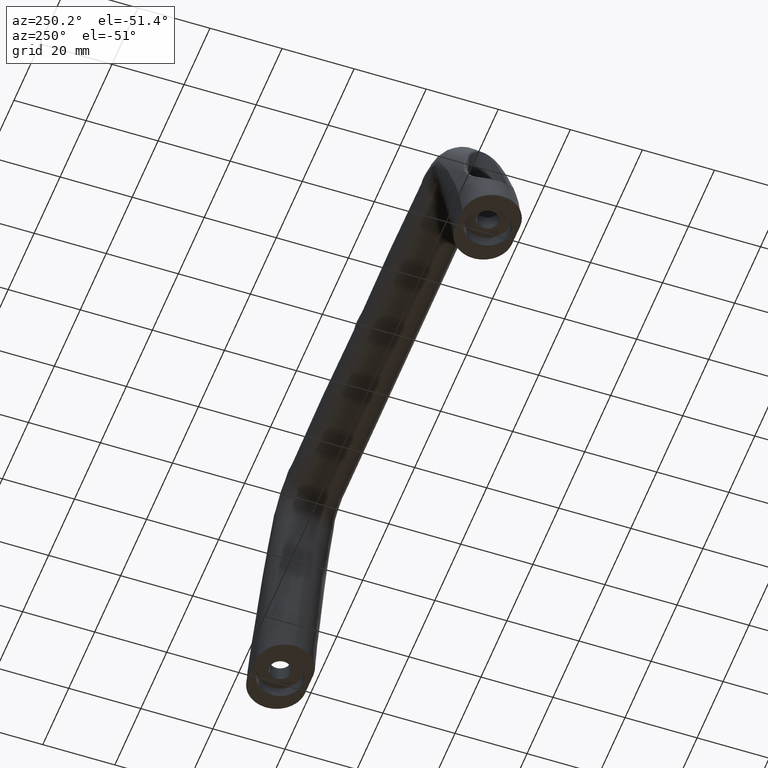
[diagram: clean part render]
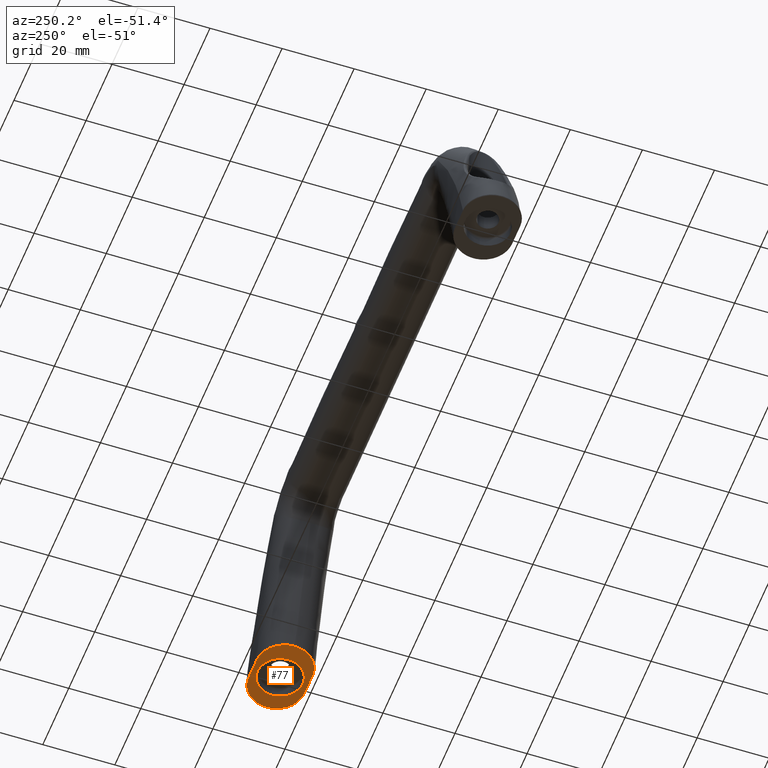
[diagram: same view with one face highlighted and labeled with its STEP entity id]
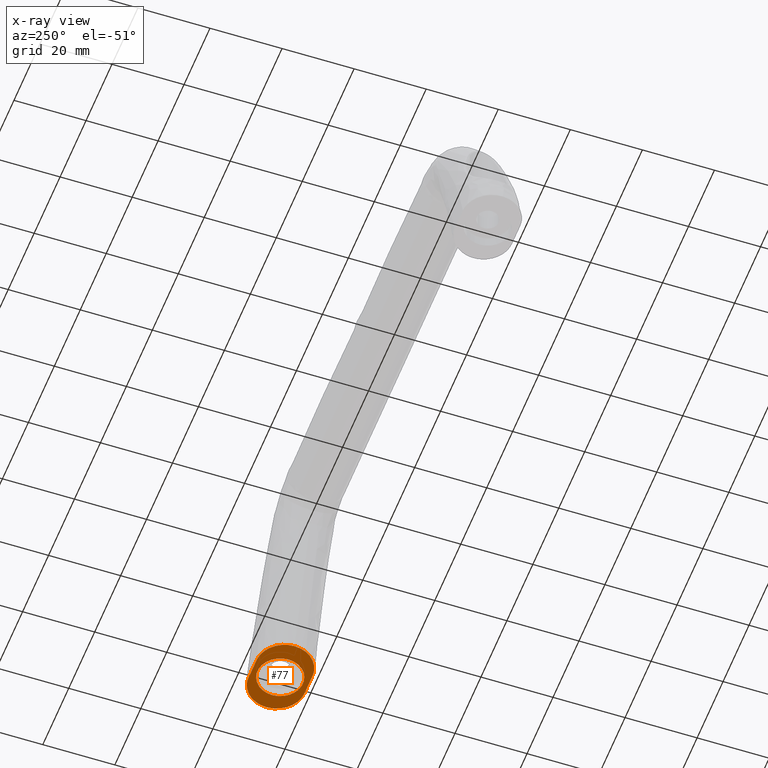
[diagram: x-ray of the same camera — body ghosted, the highlighted face saturated]
A machine part, auxiliary view. The second image highlights one B-rep face of the part: STEP entity #77.
The next image is the same camera in x-ray: the body ghosted, the highlighted face saturated — about 0% of this face is hidden behind the body in this view.
In plain terms, the highlighted planar face has unit normal (0, 0, -1).
Its self-contained STEP definition (entity closure, byte-faithful):
#77=ADVANCED_FACE('',(#468,#469),#467,.T.);
#467=PLANE('',#3920);
#468=FACE_OUTER_BOUND('',#3921,.T.);
#469=FACE_BOUND('',#3922,.T.);
#3917=CARTESIAN_POINT('',(-1.32201761493E+01,3.78022730889E+01,2.14999999850E+01));
#3918=DIRECTION('',(0.00000000000E+00,0.00000000000E+00,-1.00000000000E+00));
#3919=DIRECTION('',(1.00000000000E+00,0.00000000000E+00,0.00000000000E+00));
#3920=AXIS2_PLACEMENT_3D('',#3917,#3918,#3919);
#3921=EDGE_LOOP('',(#4248,#4249,#4250));
#3922=EDGE_LOOP('',(#4251,#4252));
#4248=ORIENTED_EDGE('',*,*,#4318,.F.);
#4249=ORIENTED_EDGE('',*,*,#4403,.F.);
#4250=ORIENTED_EDGE('',*,*,#4404,.F.);
#4251=ORIENTED_EDGE('',*,*,#4408,.T.);
#4252=ORIENTED_EDGE('',*,*,#4409,.T.);
#4318=EDGE_CURVE('',#4437,#4444,#4445,.T.);
#4403=EDGE_CURVE('',#5002,#4437,#5009,.T.);
#4404=EDGE_CURVE('',#4444,#5002,#5015,.T.);
#4408=EDGE_CURVE('',#5039,#5040,#5041,.T.);
#4409=EDGE_CURVE('',#5040,#5039,#5047,.T.);
#4437=VERTEX_POINT('',#5224);
#4444=VERTEX_POINT('',#5229);
#4445=(BOUNDED_CURVE() B_SPLINE_CURVE(3,(#5230,#5231,#5232,#5233,#5234,#5235,#5236,#5237,#5238,#5239,#5240,#5241,#5242,#5243,#5244,#5245,#5246,#5247,#5248,#5249,#5250,#5251,#5252,#5253,#5254,#5255,#5256,#5257,#5258,#5259,#5260,#5261,#5262,#5263,#5264,#5265,#5266,#5267,#5268,#5269,#5270,#5271),.UNSPECIFIED.,.F.,.F.) B_SPLINE_CURVE_WITH_KNOTS((4,2,2,2,2,2,2,2,2,2,2,2,2,2,2,2,2,2,2,2,4),(-2.43763442707E+01,-2.28528227538E+01,-2.13293012368E+01,-2.05675404783E+01,-1.98057797199E+01,-1.82822582030E+01,-1.67587366860E+01,-1.59969759276E+01,-1.52352151691E+01,-1.37116936522E+01,-1.21881721353E+01,-1.06646506184E+01,-9.14112910149E+00,-8.37936834303E+00,-7.61760758457E+00,-6.09408606766E+00,-4.57056455074E+00,-3.04704303383E+00,-2.28528227538E+00,-1.52352151691E+00,0.00000000000E+00),.UNSPECIFIED.) CURVE() GEOMETRIC_REPRESENTATION_ITEM() RATIONAL_B_SPLINE_CURVE((1.00000000000E+00,1.00000000000E+00,1.00000000000E+00,1.00000000000E+00,1.00000000000E+00,1.00000000000E+00,1.00000000000E+00,1.00000000000E+00,1.00000000000E+00,1.00000000000E+00,1.00000000000E+00,1.00000000000E+00,1.00000000000E+00,1.00000000000E+00,1.00000000000E+00,1.00000000000E+00,1.00000000000E+00,1.00000000000E+00,1.00000000000E+00,1.00000000000E+00,1.00000000000E+00,1.00000000000E+00,1.00000000000E+00,1.00000000000E+00,1.00000000000E+00,1.00000000000E+00,1.00000000000E+00,1.00000000000E+00,1.00000000000E+00,1.00000000000E+00,1.00000000000E+00,1.00000000000E+00,1.00000000000E+00,1.00000000000E+00,1.00000000000E+00,1.00000000000E+00,1.00000000000E+00,1.00000000000E+00,1.00000000000E+00,1.00000000000E+00,1.00000000000E+00,1.00000000000E+00)) REPRESENTATION_ITEM('') );
#5002=VERTEX_POINT('',#6469);
#5009=(BOUNDED_CURVE() B_SPLINE_CURVE(3,(#6474,#6475,#6476,#6477,#6478,#6479,#6480,#6481,#6482,#6483,#6484,#6485,#6486,#6487,#6488,#6489,#6490,#6491,#6492,#6493,#6494,#6495,#6496),.UNSPECIFIED.,.F.,.F.) B_SPLINE_CURVE_WITH_KNOTS((4,2,2,2,2,2,2,2,2,2,1,4),(-1.83551127262E+01,-1.72079181809E+01,-1.60607236355E+01,-1.49135290900E+01,-1.37663345447E+01,-1.26191399993E+01,-1.14719454540E+01,-9.17755636312E+00,-6.88316727234E+00,-5.73597272696E+00,-4.58877818156E+00,0.00000000000E+00),.UNSPECIFIED.) CURVE() GEOMETRIC_REPRESENTATION_ITEM() RATIONAL_B_SPLINE_CURVE((1.00000000000E+00,1.00000000000E+00,1.00000000000E+00,1.00000000000E+00,1.00000000000E+00,1.00000000000E+00,1.00000000000E+00,1.00000000000E+00,1.00000000000E+00,1.00000000000E+00,1.00000000000E+00,1.00000000000E+00,1.00000000000E+00,1.00000000000E+00,1.00000000000E+00,1.00000000000E+00,1.00000000000E+00,1.00000000000E+00,1.00000000000E+00,1.00000000000E+00,1.00000000000E+00,1.00000000000E+00,1.00000000000E+00)) REPRESENTATION_ITEM('') );
#5015=(BOUNDED_CURVE() B_SPLINE_CURVE(3,(#6497,#6498,#6499,#6500,#6501,#6502,#6503,#6504,#6505,#6506,#6507,#6508,#6509,#6510,#6511,#6512,#6513,#6514,#6515,#6516,#6517,#6518,#6519,#6520,#6521,#6522,#6523),.UNSPECIFIED.,.F.,.F.) B_SPLINE_CURVE_WITH_KNOTS((4,1,2,2,2,2,2,2,2,2,2,2,2,4),(-1.83537318074E+01,-1.37652988555E+01,-1.26181906175E+01,-1.20446364985E+01,-1.14710823796E+01,-1.03239741417E+01,-9.75042002264E+00,-9.17686590367E+00,-8.02975766571E+00,-6.88264942775E+00,-5.73554118979E+00,-4.58843295183E+00,-2.29421647592E+00,0.00000000000E+00),.UNSPECIFIED.) CURVE() GEOMETRIC_REPRESENTATION_ITEM() RATIONAL_B_SPLINE_CURVE((1.00000000000E+00,1.00000000000E+00,1.00000000000E+00,1.00000000000E+00,1.00000000000E+00,1.00000000000E+00,1.00000000000E+00,1.00000000000E+00,1.00000000000E+00,1.00000000000E+00,1.00000000000E+00,1.00000000000E+00,1.00000000000E+00,1.00000000000E+00,1.00000000000E+00,1.00000000000E+00,1.00000000000E+00,1.00000000000E+00,1.00000000000E+00,1.00000000000E+00,1.00000000000E+00,1.00000000000E+00,1.00000000000E+00,1.00000000000E+00,1.00000000000E+00,1.00000000000E+00,1.00000000000E+00)) REPRESENTATION_ITEM('') );
#5039=VERTEX_POINT('',#6575);
#5040=VERTEX_POINT('',#6576);
#5041=CIRCLE('',#6580,6.30000000000E+00);
#5047=CIRCLE('',#6584,6.30000000000E+00);
#5224=CARTESIAN_POINT('',(2.85160158787E+00,2.07500084312E+01,2.14999999850E+01));
#5229=CARTESIAN_POINT('',(2.85160158787E+00,3.62499915988E+01,2.14999999850E+01));
#5230=CARTESIAN_POINT('',(2.85160158787E+00,2.07500084312E+01,2.14999999850E+01));
#5231=CARTESIAN_POINT('',(3.36310431695E+00,2.07500160303E+01,2.14999999850E+01));
#5232=CARTESIAN_POINT('',(3.87507419219E+00,2.08012909283E+01,2.14999999850E+01));
#5233=CARTESIAN_POINT('',(4.86724028831E+00,2.09997993536E+01,2.14999999850E+01));
#5234=CARTESIAN_POINT('',(5.34976446359E+00,2.11464008645E+01,2.14999999850E+01));
#5235=CARTESIAN_POINT('',(6.05301898129E+00,2.14379995529E+01,2.14999999850E+01));
#5236=CARTESIAN_POINT('',(6.28507927786E+00,2.15479097035E+01,2.14999999850E+01));
#5237=CARTESIAN_POINT('',(6.73305385783E+00,2.17878390044E+01,2.14999999850E+01));
#5238=CARTESIAN_POINT('',(6.94977790501E+00,2.19180565742E+01,2.14999999850E+01));
#5239=CARTESIAN_POINT('',(7.57864219803E+00,2.23387878112E+01,2.14999999850E+01));
#5240=CARTESIAN_POINT('',(7.96975766041E+00,2.26591577932E+01,2.14999999850E+01));
#5241=CARTESIAN_POINT('',(8.69287108121E+00,2.33826379646E+01,2.14999999850E+01));
#5242=CARTESIAN_POINT('',(9.01295564283E+00,2.37738004867E+01,2.14999999850E+01));
#5243=CARTESIAN_POINT('',(9.43340301986E+00,2.44028838961E+01,2.14999999850E+01));
#5244=CARTESIAN_POINT('',(9.56353176787E+00,2.46196873278E+01,2.14999999850E+01));
#5245=CARTESIAN_POINT('',(9.80329020323E+00,2.50678372599E+01,2.14999999850E+01));
#5246=CARTESIAN_POINT('',(9.91308654012E+00,2.52999321209E+01,2.14999999850E+01));
#5247=CARTESIAN_POINT('',(1.02043481343E+01,2.60032201942E+01,2.14999999850E+01));
#5248=CARTESIAN_POINT('',(1.03507717727E+01,2.64857941057E+01,2.14999999850E+01));
#5249=CARTESIAN_POINT('',(1.05489687011E+01,2.74781278447E+01,2.14999999850E+01));
#5250=CARTESIAN_POINT('',(1.06000329861E+01,2.79903738079E+01,2.14999999850E+01));
#5251=CARTESIAN_POINT('',(1.05999736420E+01,2.90102382132E+01,2.14999999850E+01));
#5252=CARTESIAN_POINT('',(1.05494464730E+01,2.95205902589E+01,2.14999999850E+01));
#5253=CARTESIAN_POINT('',(1.03489955237E+01,3.05219818518E+01,2.14999999850E+01));
#5254=CARTESIAN_POINT('',(1.02000835394E+01,3.10086558603E+01,2.14999999850E+01));
#5255=CARTESIAN_POINT('',(9.90983228263E+00,3.17071142065E+01,2.14999999850E+01));
#5256=CARTESIAN_POINT('',(9.80173183920E+00,3.19352664866E+01,2.14999999850E+01));
#5257=CARTESIAN_POINT('',(9.56247704413E+00,3.23820912015E+01,2.14999999850E+01));
#5258=CARTESIAN_POINT('',(9.43049037683E+00,3.26019350166E+01,2.14999999850E+01));
#5259=CARTESIAN_POINT('',(9.00556392712E+00,3.32363155103E+01,2.14999999850E+01));
#5260=CARTESIAN_POINT('',(8.68483346214E+00,3.36258965652E+01,2.14999999850E+01));
#5261=CARTESIAN_POINT('',(7.97019486500E+00,3.43399067352E+01,2.14999999850E+01));
#5262=CARTESIAN_POINT('',(7.57156570037E+00,3.46667631476E+01,2.14999999850E+01));
#5263=CARTESIAN_POINT('',(6.72976632178E+00,3.52283049180E+01,2.14999999850E+01));
#5264=CARTESIAN_POINT('',(6.28499557747E+00,3.54660024016E+01,2.14999999850E+01));
#5265=CARTESIAN_POINT('',(5.58169812166E+00,3.57573344830E+01,2.14999999850E+01));
#5266=CARTESIAN_POINT('',(5.33993222562E+00,3.58437996954E+01,2.14999999850E+01));
#5267=CARTESIAN_POINT('',(4.85352021603E+00,3.59911080639E+01,2.14999999850E+01));
#5268=CARTESIAN_POINT('',(4.60820340846E+00,3.60523702762E+01,2.14999999850E+01));
#5269=CARTESIAN_POINT('',(3.86606098925E+00,3.61998053186E+01,2.14999999850E+01));
#5270=CARTESIAN_POINT('',(3.36310426707E+00,3.62499839997E+01,2.14999999850E+01));
#5271=CARTESIAN_POINT('',(2.85160158787E+00,3.62499915988E+01,2.14999999850E+01));
#6469=CARTESIAN_POINT('',(-1.10547025915E+01,2.85000000150E+01,2.14999999850E+01));
#6474=CARTESIAN_POINT('',(-1.10547025915E+01,2.85000000150E+01,2.14999999850E+01));
#6475=CARTESIAN_POINT('',(-1.10547025915E+01,2.81081963492E+01,2.14999999850E+01));
#6476=CARTESIAN_POINT('',(-1.10251766141E+01,2.77192457989E+01,2.14999999850E+01));
#6477=CARTESIAN_POINT('',(-1.09076253171E+01,2.69469975297E+01,2.14999999850E+01));
#6478=CARTESIAN_POINT('',(-1.08192945623E+01,2.65647907533E+01,2.14999999850E+01));
#6479=CARTESIAN_POINT('',(-1.05892771930E+01,2.58258996845E+01,2.14999999850E+01));
#6480=CARTESIAN_POINT('',(-1.04472753802E+01,2.54666531188E+01,2.14999999850E+01));
#6481=CARTESIAN_POINT('',(-1.01089011856E+01,2.47687031321E+01,2.14999999850E+01));
#6482=CARTESIAN_POINT('',(-9.91069048363E+00,2.44279067649E+01,2.14999999850E+01));
#6483=CARTESIAN_POINT('',(-9.47103586778E+00,2.37883628431E+01,2.14999999850E+01));
#6484=CARTESIAN_POINT('',(-9.22891028504E+00,2.34873145948E+01,2.14999999850E+01));
#6485=CARTESIAN_POINT('',(-8.70047932337E+00,2.29223155782E+01,2.14999999850E+01));
#6486=CARTESIAN_POINT('',(-8.41170772268E+00,2.26565069783E+01,2.14999999850E+01));
#6487=CARTESIAN_POINT('',(-7.49396694906E+00,2.19322893726E+01,2.14999999850E+01));
#6488=CARTESIAN_POINT('',(-6.82299153531E+00,2.15492837126E+01,2.14999999850E+01));
#6489=CARTESIAN_POINT('',(-5.36086754818E+00,2.09860512643E+01,2.14999999850E+01));
#6490=CARTESIAN_POINT('',(-4.62179167531E+00,2.08258190323E+01,2.14999999850E+01));
#6491=CARTESIAN_POINT('',(-3.50486241843E+00,2.07435033450E+01,2.14999999850E+01));
#6492=CARTESIAN_POINT('',(-3.13060157544E+00,2.07499930768E+01,2.14999999850E+01));
#6493=CARTESIAN_POINT('',(-2.38282625877E+00,2.07499936269E+01,2.14999999850E+01));
#6494=CARTESIAN_POINT('',(-5.13387916371E-01,2.07499958838E+01,2.14999999850E+01));
#6495=CARTESIAN_POINT('',(1.35605064752E+00,2.07500019924E+01,2.14999999850E+01));
#6496=CARTESIAN_POINT('',(2.85160158787E+00,2.07500084312E+01,2.14999999850E+01));
#6497=CARTESIAN_POINT('',(2.85160158787E+00,3.62499915988E+01,2.14999999850E+01));
#6498=CARTESIAN_POINT('',(1.34015465545E+00,3.62499981060E+01,2.14999999850E+01));
#6499=CARTESIAN_POINT('',(-5.49153944198E-01,3.62500042597E+01,2.14999999850E+01));
#6500=CARTESIAN_POINT('',(-2.43846241241E+00,3.62500064614E+01,2.14999999850E+01));
#6501=CARTESIAN_POINT('',(-3.00525494383E+00,3.62500068501E+01,2.14999999850E+01));
#6502=CARTESIAN_POINT('',(-3.19423464293E+00,3.62514758395E+01,2.14999999850E+01));
#6503=CARTESIAN_POINT('',(-3.57197431827E+00,3.62478077362E+01,2.14999999850E+01));
#6504=CARTESIAN_POINT('',(-3.76061473409E+00,3.62390759981E+01,2.14999999850E+01));
#6505=CARTESIAN_POINT('',(-4.32584570747E+00,3.61921273351E+01,2.14999999850E+01));
#6506=CARTESIAN_POINT('',(-4.70175015159E+00,3.61332820545E+01,2.14999999850E+01));
#6507=CARTESIAN_POINT('',(-5.26415470155E+00,3.60013555072E+01,2.14999999850E+01));
#6508=CARTESIAN_POINT('',(-5.45201044143E+00,3.59498108164E+01,2.14999999850E+01));
#6509=CARTESIAN_POINT('',(-5.82001505369E+00,3.58338251912E+01,2.14999999850E+01));
#6510=CARTESIAN_POINT('',(-6.00095908799E+00,3.57692487088E+01,2.14999999850E+01));
#6511=CARTESIAN_POINT('',(-6.53480431585E+00,3.55561728397E+01,2.14999999850E+01));
#6512=CARTESIAN_POINT('',(-6.87876728256E+00,3.53884317580E+01,2.14999999850E+01));
#6513=CARTESIAN_POINT('',(-7.54262337973E+00,3.50011334508E+01,2.14999999850E+01));
#6514=CARTESIAN_POINT('',(-7.86431097543E+00,3.47796916839E+01,2.14999999850E+01));
#6515=CARTESIAN_POINT('',(-8.46314936997E+00,3.42977653835E+01,2.14999999850E+01));
#6516=CARTESIAN_POINT('',(-8.74262820795E+00,3.40363360888E+01,2.14999999850E+01));
#6517=CARTESIAN_POINT('',(-9.26207734562E+00,3.34729272047E+01,2.14999999850E+01));
#6518=CARTESIAN_POINT('',(-9.50366927874E+00,3.31684426649E+01,2.14999999850E+01));
#6519=CARTESIAN_POINT('',(-1.01534235914E+01,3.22095212321E+01,2.14999999850E+01));
#6520=CARTESIAN_POINT('',(-1.04845640800E+01,3.15195760032E+01,2.14999999850E+01));
#6521=CARTESIAN_POINT('',(-1.09402854835E+01,3.00371148512E+01,2.14999999850E+01));
#6522=CARTESIAN_POINT('',(-1.10547025915E+01,2.92762499306E+01,2.14999999850E+01));
#6523=CARTESIAN_POINT('',(-1.10547025915E+01,2.85000000150E+01,2.14999999850E+01));
#6575=CARTESIAN_POINT('',(6.30000000000E+00,2.85000000150E+01,2.14999999850E+01));
#6576=CARTESIAN_POINT('',(-6.30000000000E+00,2.85000000150E+01,2.14999999850E+01));
#6577=CARTESIAN_POINT('',(-7.10542735760E-15,2.85000000150E+01,2.14999999850E+01));
#6578=DIRECTION('',(0.00000000000E+00,0.00000000000E+00,1.00000000000E+00));
#6579=DIRECTION('',(1.00000000000E+00,-0.00000000000E+00,-0.00000000000E+00));
#6580=AXIS2_PLACEMENT_3D('',#6577,#6578,#6579);
#6581=CARTESIAN_POINT('',(-7.10542735760E-15,2.85000000150E+01,2.14999999850E+01));
#6582=DIRECTION('',(0.00000000000E+00,0.00000000000E+00,1.00000000000E+00));
#6583=DIRECTION('',(1.00000000000E+00,-0.00000000000E+00,-0.00000000000E+00));
#6584=AXIS2_PLACEMENT_3D('',#6581,#6582,#6583);